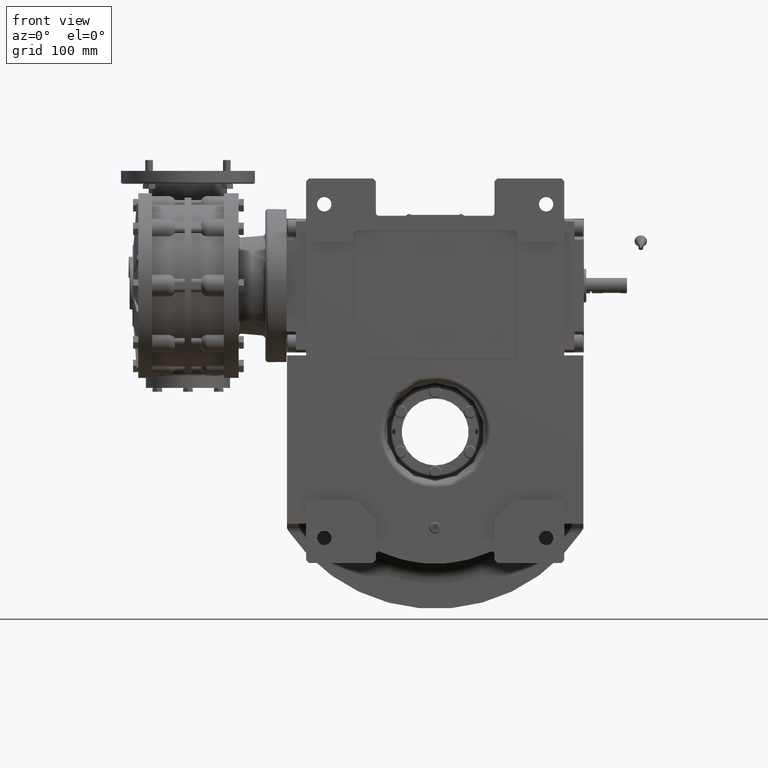
[diagram: clean part render]
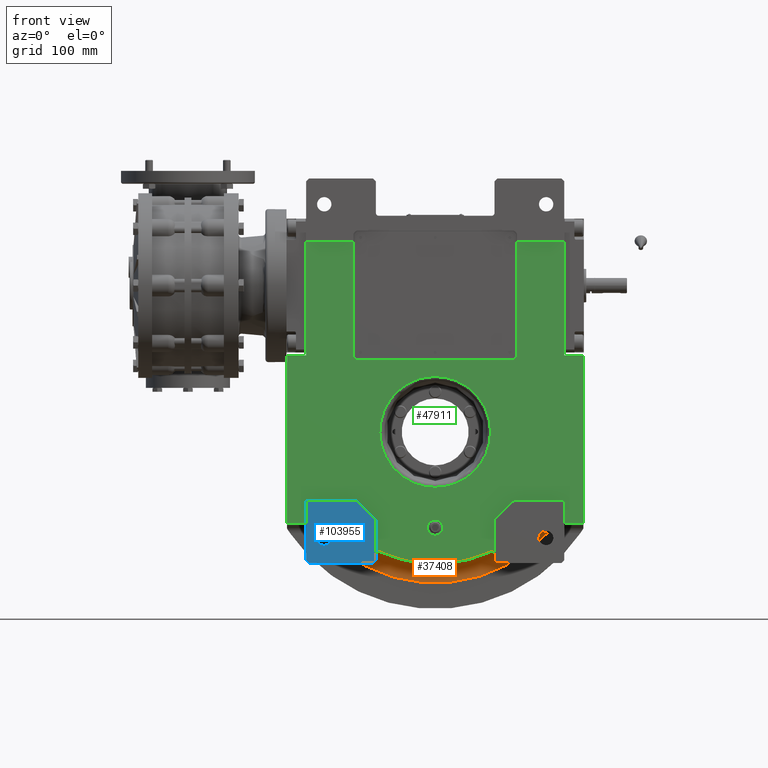
[diagram: same view with three faces highlighted in distinct colors, each labeled with its STEP entity id]
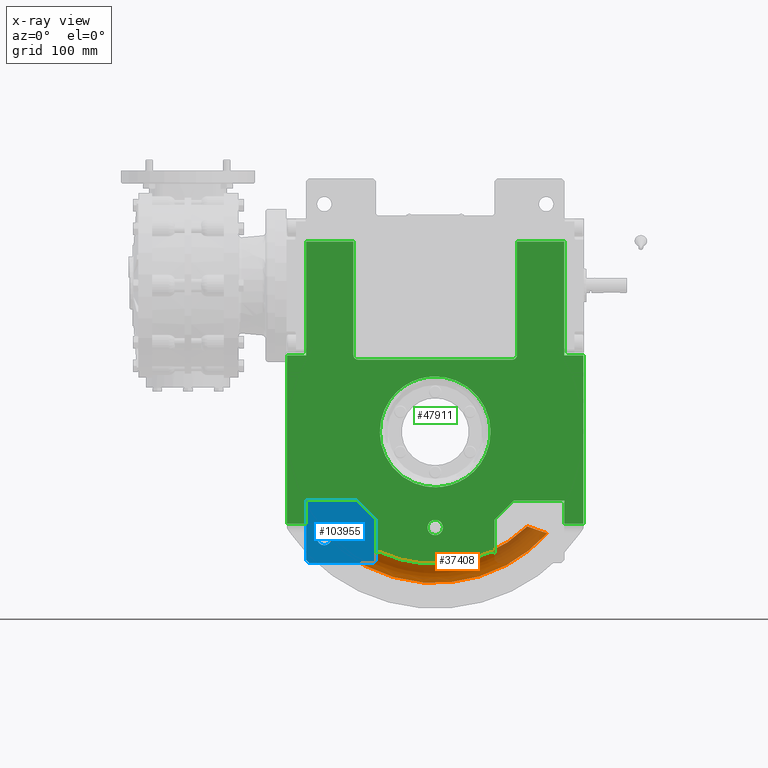
[diagram: x-ray of the same camera — body ghosted, the three highlighted faces saturated]
A machine part, front view with three faces highlighted in distinct colors.
The next image is the same camera in x-ray (body ghosted, the three faces saturated) — at least one of them is partly hidden behind the body in this view.
Their STEP definitions:

[orange] entity #37408 — the highlighted toroidal blend (fillet) surface has major radius 158 mm and minor (blend) radius 20 mm.
#369 = CARTESIAN_POINT ( 'NONE',  ( 97.74688043386996128, 32.31025036503177006, -99.36423024539772086 ) ) ;
#2761 = DIRECTION ( 'NONE',  ( -0.7986875995212583401, 0.000000000000000000, -0.6017458918604845497 ) ) ;
#3208 = CARTESIAN_POINT ( 'NONE',  ( 110.3220350555751281, 43.91652627139864506, -103.7565656085486836 ) ) ;
#3909 = CARTESIAN_POINT ( 'NONE',  ( -109.4570425004065584, 43.58796948114684966, -103.4653075323048057 ) ) ;
#4484 = CARTESIAN_POINT ( 'NONE',  ( -98.02791288108049628, 32.96098501412838999, -99.46561891031363700 ) ) ;
#5067 = CARTESIAN_POINT ( 'NONE',  ( -97.91255337353909738, 32.70133367099210631, -99.42366482389860494 ) ) ;
#5644 = CARTESIAN_POINT ( 'NONE',  ( -103.5604638868912701, 40.20595371232317206, -101.4407642183008420 ) ) ;
#6316 = CARTESIAN_POINT ( 'NONE',  ( 112.2734842588863842, 45.00000000000000000, -111.4014792453958052 ) ) ;
#7380 = CARTESIAN_POINT ( 'NONE',  ( 97.97117223922006701, 32.83484338586081464, -99.44526033932362452 ) ) ;
#8522 = CARTESIAN_POINT ( 'NONE',  ( 98.02735946511637621, 32.96029053751003346, -99.46562191245601525 ) ) ;
#11410 = CARTESIAN_POINT ( 'NONE',  ( 113.3373850614359384, 44.67107231412343538, -104.7552860952817042 ) ) ;
#11970 = CARTESIAN_POINT ( 'NONE',  ( 115.2789584378532908, 44.95770843063282030, -105.3909224794406327 ) ) ;
#12663 = CARTESIAN_POINT ( 'NONE',  ( -112.7507830709306091, 44.54855493280744128, -104.5636799672140143 ) ) ;
#13258 = CARTESIAN_POINT ( 'NONE',  ( -111.3923422199803639, 44.22351198310433773, -104.1132547796615171 ) ) ;
#13818 = CARTESIAN_POINT ( 'NONE',  ( -97.69402759877473841, 32.17824278475688260, -99.34394788754170236 ) ) ;
#14397 = CARTESIAN_POINT ( 'NONE',  ( -111.7301272109056498, 44.31438120929762192, -104.2256781774488275 ) ) ;
#14983 = CARTESIAN_POINT ( 'NONE',  ( -110.4507057160706438, 43.94872069333644049, -103.7991858523617452 ) ) ;
#16148 = CARTESIAN_POINT ( 'NONE',  ( 98.00384888286747298, 32.90804153405046151, -99.45709908681564571 ) ) ;
#16725 = CARTESIAN_POINT ( 'NONE',  ( 97.36157097504504065, 31.29695299417163667, -99.22571455668132501 ) ) ;
#17302 = CARTESIAN_POINT ( 'NONE',  ( 99.07132607232249200, 35.05063944442410673, -99.84668655224699307 ) ) ;
#17874 = CARTESIAN_POINT ( 'NONE',  ( 102.6950527371998163, 39.41357277141199233, -101.1352714509385038 ) ) ;
#18439 = CARTESIAN_POINT ( 'NONE',  ( 98.03505203622908937, 32.97731647600386395, -99.46841138892769152 ) ) ;
#18494 = B_SPLINE_CURVE_WITH_KNOTS ( 'NONE', 3,
 ( #79888, #61844, #97380, #23139, #50516, #39472, #58695, #13818, #59264, #5067, #31290, #41771, #66860, #4484, #68572, #77298, #33020, #30727, #112852, #102403, #22578, #94246, #49354, #111133, #57530, #84346, #32449, #58114, #93665, #40051, #5644, #104122, #110552, #111719, #93098, #84928, #101815, #24292, #40632, #59836, #66290, #68010, #3909, #76141, #94820, #21982, #31889, #14983, #13258, #14397, #23716, #74989, #12663, #67433, #86079, #49932, #85510, #102968, #48199, #48777, #41225, #75565, #76721, #83779 ),
 .UNSPECIFIED., .F., .F.,
 ( 4, 2, 2, 2, 1, 1, 1, 1, 2, 2, 2, 2, 2, 1, 1, 1, 1, 1, 2, 2, 2, 2, 2, 1, 1, 1, 1, 1, 1, 2, 2, 2, 2, 2, 1, 1, 1, 2, 2, 2, 4 ),
 ( 0.000000000000000000, 0.1250000000000111300, 0.1875000000000168754, 0.2187500000000195677, 0.2343750000000205391, 0.2421875000000207612, 0.2460937500000210110, 0.2480468750000210110, 0.2490234375000210942, 0.2500000000000211497, 0.3750000000000347500, 0.4375000000000414113, 0.4687500000000452416, 0.4843750000000466294, 0.4921875000000472955, 0.4960937500000481282, 0.4980468750000489053, 0.4990234375000496825, 0.4995117187500495715, 0.5000000000000494049, 0.6250000000001078027, 0.6875000000001370015, 0.7187500000001518785, 0.7343750000001594280, 0.7421875000001629807, 0.7460937500001643130, 0.7480468750001647571, 0.7490234375001647571, 0.7495117187501649791, 0.7497558593751655343, 0.7500000000001662004, 0.8125000000001361133, 0.8437500000001215694, 0.8593750000001149081, 0.8671875000001115774, 0.8710937500001101341, 0.8730468750001093570, 0.8740234375001090239, 0.8750000000001086908, 0.9375000000000544009, 1.000000000000000000 ),
 .UNSPECIFIED. ) ;
#19002 = CARTESIAN_POINT ( 'NONE',  ( 109.3745464157829872, 43.55663680806992488, -103.4372806364187625 ) ) ;
#19713 = EDGE_LOOP ( 'NONE', ( #36688, #106626, #84691, #96081 ) ) ;
#20151 = CARTESIAN_POINT ( 'NONE',  ( 112.6337903164633758, 44.53780329086850287, -104.5239396644698502 ) ) ;
#20954 = CARTESIAN_POINT ( 'NONE',  ( -112.2729284226672064, 45.00000000000000000, -111.4014722087630105 ) ) ;
#21530 = CARTESIAN_POINT ( 'NONE',  ( -101.7965497933509909, 45.00000000000000000, -121.4959109195396110 ) ) ;
#21558 = CARTESIAN_POINT ( 'NONE',  ( -1.421085471520200056E-14, 25.00000000000330047, 8.526512829121199706E-14 ) ) ;
#21982 = CARTESIAN_POINT ( 'NONE',  ( -109.4752336681219163, 43.59488064486146897, -103.4714376798484778 ) ) ;
#22578 = CARTESIAN_POINT ( 'NONE',  ( -101.7297215537501955, 38.46499574230020357, -100.7942339710923818 ) ) ;
#23005 = VERTEX_POINT ( 'NONE', #37717 ) ;
#23139 = CARTESIAN_POINT ( 'NONE',  ( -96.88299641673512497, 29.71310565171039997, -99.04611361363333799 ) ) ;
#23716 = CARTESIAN_POINT ( 'NONE',  ( -112.2734746109593260, 44.44468254698182363, -104.4058678920740988 ) ) ;
#24292 = CARTESIAN_POINT ( 'NONE',  ( -108.8488826586078488, 43.34740058216166858, -103.2598516227548657 ) ) ;
#25449 = CARTESIAN_POINT ( 'NONE',  ( 102.7499884497114238, 39.46404896067710411, -101.1546350695295473 ) ) ;
#26026 = CARTESIAN_POINT ( 'NONE',  ( 107.5527563214296549, 42.75924596825704072, -102.8205401285183029 ) ) ;
#26592 = CARTESIAN_POINT ( 'NONE',  ( 102.5048850568784786, 39.23635417113926138, -101.0681975133973225 ) ) ;
#27175 = CARTESIAN_POINT ( 'NONE',  ( 108.4800013347112042, 43.18941542812900281, -103.1351226245848949 ) ) ;
#28543 = CARTESIAN_POINT ( 'NONE',  ( 83.96432363714549751, 45.00000000000000000, -134.4519182908271944 ) ) ;
#28940 = VERTEX_POINT ( 'NONE', #81780 ) ;
#30727 = CARTESIAN_POINT ( 'NONE',  ( -100.3652794098986902, 36.87972709017024897, -100.3072398612967220 ) ) ;
#31290 = CARTESIAN_POINT ( 'NONE',  ( -97.97424618332217960, 32.84128268383337712, -99.44611099143347133 ) ) ;
#31414 = CARTESIAN_POINT ( 'NONE',  ( 117.1665481270144085, 45.00000000000000000, -106.0000000000000000 ) ) ;
#31889 = CARTESIAN_POINT ( 'NONE',  ( -109.9185748977876074, 43.76307598258188847, -103.6208235213127153 ) ) ;
#32449 = CARTESIAN_POINT ( 'NONE',  ( -102.7293842753246480, 39.44505987403460523, -101.1479936078508217 ) ) ;
#32705 = VERTEX_POINT ( 'NONE', #70696 ) ;
#33020 = CARTESIAN_POINT ( 'NONE',  ( -99.18958940278133696, 35.23783606590234285, -99.88545211301371296 ) ) ;
#34760 = CARTESIAN_POINT ( 'NONE',  ( 104.2463131879213307, 40.76393802617366191, -101.6826970027681085 ) ) ;
#35342 = CARTESIAN_POINT ( 'NONE',  ( 102.1879067513015258, 38.93036966924995568, -100.9561944668075455 ) ) ;
#35497 = TOROIDAL_SURFACE ( 'NONE', #57888, 158.0000000000000000, 20.00000000000000000 ) ;
#35910 = CARTESIAN_POINT ( 'NONE',  ( 98.48471084682699939, 33.97079976953421721, -99.63148764706355109 ) ) ;
#36688 = ORIENTED_EDGE ( 'NONE', *, *, #96537, .F. ) ;
#37408 = ADVANCED_FACE ( 'NONE', ( #98961 ), #35497, .F. ) ;
#37717 = CARTESIAN_POINT ( 'NONE',  ( -117.1660380023439956, 45.00001431931600138, -105.9999239592122109 ) ) ;
#38456 = DIRECTION ( 'NONE',  ( -6.789570679155330615E-15, -1.000000000000000000, 2.340198913247644897E-14 ) ) ;
#39472 = CARTESIAN_POINT ( 'NONE',  ( -97.38739292718010176, 31.36510134331906130, -99.23164404730367494 ) ) ;
#40051 = CARTESIAN_POINT ( 'NONE',  ( -102.7556243044858064, 39.46912785005818591, -101.1572386221299240 ) ) ;
#40632 = CARTESIAN_POINT ( 'NONE',  ( -109.1605355308136609, 43.47300632657120900, -103.3652613385540207 ) ) ;
#41225 = CARTESIAN_POINT ( 'NONE',  ( -114.9267522836661755, 44.89477428892062960, -105.2774722197928270 ) ) ;
#41771 = CARTESIAN_POINT ( 'NONE',  ( -98.00546406152352574, 32.91113758827333413, -99.45746077517848960 ) ) ;
#43522 = CARTESIAN_POINT ( 'NONE',  ( 97.90664548853494864, 32.68827471051651656, -99.42190602882016037 ) ) ;
#44090 = CARTESIAN_POINT ( 'NONE',  ( 100.2350872385880791, 36.71107100005902879, -100.2633408774202195 ) ) ;
#44131 = VERTEX_POINT ( 'NONE', #93371 ) ;
#44493 = AXIS2_PLACEMENT_3D ( 'NONE', #21558, #38456, #55378 ) ;
#46717 = EDGE_CURVE ( 'NONE', #23005, #32705, #106925, .T. ) ;
#48199 = CARTESIAN_POINT ( 'NONE',  ( -113.2388050366955667, 44.64354608652779177, -104.7244472051020097 ) ) ;
#48777 = CARTESIAN_POINT ( 'NONE',  ( -114.1474023438828596, 44.80939919492819001, -105.0231329103317108 ) ) ;
#49354 = CARTESIAN_POINT ( 'NONE',  ( -102.2964152114121248, 39.03719391014137585, -100.9951587366911241 ) ) ;
#49932 = CARTESIAN_POINT ( 'NONE',  ( -113.1631049617858622, 44.62956057005464316, -104.6995521603640498 ) ) ;
#50516 = CARTESIAN_POINT ( 'NONE',  ( -97.06297459206342637, 30.37875981429069938, -99.11244784926033446 ) ) ;
#51672 = CARTESIAN_POINT ( 'NONE',  ( 98.03207687276184856, 32.97073713156943597, -99.46733246904339865 ) ) ;
#53407 = CARTESIAN_POINT ( 'NONE',  ( 97.85275650508563672, 32.56236914450305875, -99.40243881657917768 ) ) ;
#55378 = DIRECTION ( 'NONE',  ( -0.6978784504689377055, -1.201735973212917754E-14, -0.7162162162162165613 ) ) ;
#56499 = CARTESIAN_POINT ( 'NONE',  ( -83.96482471285699489, 45.00000000000000000, -134.4515343287771998 ) ) ;
#57530 = CARTESIAN_POINT ( 'NONE',  ( -102.6416497146342408, 39.36405972610243964, -101.1170677917055087 ) ) ;
#57888 = AXIS2_PLACEMENT_3D ( 'NONE', #62841, #90228, #2761 ) ;
#58114 = CARTESIAN_POINT ( 'NONE',  ( -102.7419653505997275, 39.45660694743568797, -101.1524264426147681 ) ) ;
#58695 = CARTESIAN_POINT ( 'NONE',  ( -97.50460443159397528, 31.69185725558088507, -99.27465210942251872 ) ) ;
#59264 = CARTESIAN_POINT ( 'NONE',  ( -97.79214034478044937, 32.42049839196046435, -99.37979107747185026 ) ) ;
#59836 = CARTESIAN_POINT ( 'NONE',  ( -109.3181507463841768, 43.53466286722584755, -103.4184730461046655 ) ) ;
#60422 = CARTESIAN_POINT ( 'NONE',  ( 97.48234618482011626, 31.63550269026396577, -99.26904948111314297 ) ) ;
#61591 = CARTESIAN_POINT ( 'NONE',  ( 103.3977546460237562, 40.05675034197459183, -101.3829155952155929 ) ) ;
#61844 = CARTESIAN_POINT ( 'NONE',  ( -96.30868053554550556, 26.34585515008642886, -98.83642070424104986 ) ) ;
#62731 = CARTESIAN_POINT ( 'NONE',  ( 108.7699844828208597, 43.31492083898538681, -103.2332460237712013 ) ) ;
#62733 = EDGE_CURVE ( 'NONE', #28940, #23005, #18494, .T. ) ;
#62841 = CARTESIAN_POINT ( 'NONE',  ( -2.057655180072804513E-28, 25.00000000000000000, 0.000000000000000000 ) ) ;
#64094 = CARTESIAN_POINT ( 'NONE',  ( 101.7963591369399978, 45.00000000000000000, -121.4958819722340024 ) ) ;
#66290 = CARTESIAN_POINT ( 'NONE',  ( -109.3974056362629312, 43.56519796802493971, -103.4452044021865618 ) ) ;
#66403 = CARTESIAN_POINT ( 'NONE',  ( -64.41635450183450473, 45.00000000000000000, -144.8381713325094324 ) ) ;
#66860 = CARTESIAN_POINT ( 'NONE',  ( -98.01892274206869615, 32.94104951340082010, -99.46235204995994650 ) ) ;
#67433 = CARTESIAN_POINT ( 'NONE',  ( -112.8981352970310326, 44.57872936801063446, -104.6123043516303426 ) ) ;
#68010 = CARTESIAN_POINT ( 'NONE',  ( -109.4371449076648020, 43.58039139906387760, -103.4586012990809252 ) ) ;
#68572 = CARTESIAN_POINT ( 'NONE',  ( -98.03293628953102257, 32.97209666675917106, -99.46744407336238680 ) ) ;
#69732 = CARTESIAN_POINT ( 'NONE',  ( 96.84980827649697233, 29.60359732435895452, -99.04162677069164999 ) ) ;
#70303 = CARTESIAN_POINT ( 'NONE',  ( 105.9055068370100230, 41.85610961708399458, -102.2571069029231410 ) ) ;
#70696 = CARTESIAN_POINT ( 'NONE',  ( 117.1665481270144085, 45.00000000000000000, -106.0000000000000000 ) ) ;
#71448 = CARTESIAN_POINT ( 'NONE',  ( 102.7431065449346335, 39.45774344501223396, -101.1522096567761935 ) ) ;
#72815 = CARTESIAN_POINT ( 'NONE',  ( -4.611055492802900184E-05, 45.00000000000000000, -158.5100177325210211 ) ) ;
#73157 = CARTESIAN_POINT ( 'NONE',  ( 117.1665481270144085, 45.00000000000000000, -106.0000000000000000 ) ) ;
#74989 = CARTESIAN_POINT ( 'NONE',  ( -112.4607002535011873, 44.48710846717178669, -104.4678539401486432 ) ) ;
#75565 = CARTESIAN_POINT ( 'NONE',  ( -116.2352257174750463, 44.99001509439585789, -105.7012472922178006 ) ) ;
#76141 = CARTESIAN_POINT ( 'NONE',  ( -109.4655760309758534, 43.59121322662022635, -103.4681832982696505 ) ) ;
#76721 = CARTESIAN_POINT ( 'NONE',  ( -116.7646410946360049, 44.99998530194281443, -105.8709790865936355 ) ) ;
#77298 = CARTESIAN_POINT ( 'NONE',  ( -98.54806655395772452, 34.10925224219861462, -99.65458556124448819 ) ) ;
#78484 = CARTESIAN_POINT ( 'NONE',  ( 102.3983983773695172, 39.13454416598305130, -101.0305906898127120 ) ) ;
#79049 = CARTESIAN_POINT ( 'NONE',  ( 98.02029075397882707, 32.94461909195858595, -99.46305897812415253 ) ) ;
#79620 = CARTESIAN_POINT ( 'NONE',  ( 100.6690459606547705, 37.27067431726949565, -100.4179235864729520 ) ) ;
#79888 = CARTESIAN_POINT ( 'NONE',  ( -96.30722393658518854, 24.99999992571344976, -98.83796549704690904 ) ) ;
#80212 = CARTESIAN_POINT ( 'NONE',  ( 96.30723760260589472, 24.99999990761120117, -98.83797943607669367 ) ) ;
#80772 = CARTESIAN_POINT ( 'NONE',  ( 97.67883289305895289, 32.14176207053703394, -99.33972559280917380 ) ) ;
#81568 = CARTESIAN_POINT ( 'NONE',  ( -21.98885812455705135, 45.00000000000000000, -156.9786534940434990 ) ) ;
#81780 = CARTESIAN_POINT ( 'NONE',  ( -96.30722393658518854, 24.99999992571344976, -98.83796549704690904 ) ) ;
#82722 = CARTESIAN_POINT ( 'NONE',  ( -117.1660380023439956, 45.00001431931600138, -105.9999239592122109 ) ) ;
#83779 = CARTESIAN_POINT ( 'NONE',  ( -117.1660380023439956, 45.00001431931600138, -105.9999239592122109 ) ) ;
#83896 = CARTESIAN_POINT ( 'NONE',  ( 43.59869364544065462, 45.00000000000000000, -152.4011103777230005 ) ) ;
#84346 = CARTESIAN_POINT ( 'NONE',  ( -102.7000760039274923, 39.41809226182505910, -101.1376651757015992 ) ) ;
#84691 = ORIENTED_EDGE ( 'NONE', *, *, #46717, .T. ) ;
#84928 = CARTESIAN_POINT ( 'NONE',  ( -108.0740276487307767, 43.00863225675112034, -102.9965373334888028 ) ) ;
#85510 = CARTESIAN_POINT ( 'NONE',  ( -113.2014659484088526, 44.63667040653874096, -104.7121690570024697 ) ) ;
#86079 = CARTESIAN_POINT ( 'NONE',  ( -113.0741043758506521, 44.61281630514807972, -104.6702653786944808 ) ) ;
#87248 = CARTESIAN_POINT ( 'NONE',  ( 101.3949774993228203, 38.10441288670152460, -100.6755621131664640 ) ) ;
#87681 = B_SPLINE_CURVE_WITH_KNOTS ( 'NONE', 3,
 ( #80212, #95978, #104724, #69732, #97691, #16725, #60422, #80772, #369, #53407, #43522, #7380, #16148, #79049, #8522, #51672, #18439, #35910, #17302, #44090, #79620, #87248, #105301, #115161, #35342, #78484, #26592, #106444, #17874, #88970, #71448, #25449, #96551, #114594, #61591, #34760, #70303, #105871, #26026, #107015, #27175, #62731, #98256, #91265, #19002, #101134, #3208, #99983, #20151, #11410, #11970, #108726, #73157 ),
 .UNSPECIFIED., .F., .F.,
 ( 4, 2, 2, 2, 2, 1, 1, 1, 1, 2, 2, 2, 2, 2, 2, 1, 1, 1, 1, 1, 2, 2, 2, 2, 2, 1, 1, 2, 2, 2, 2, 4 ),
 ( 0.000000000000000000, 0.1249999999998392397, 0.1874999999997588596, 0.2187499999997192801, 0.2343749999996997124, 0.2421874999996898037, 0.2460937499996850297, 0.2480468749996828648, 0.2490234374996819489, 0.2495117187496817546, 0.2499999999996815325, 0.3749999999995941025, 0.4374999999995501376, 0.4687499999995277111, 0.4843749999995164979, 0.4921874999995102251, 0.4960937499995068944, 0.4980468749995055622, 0.4990234374995043964, 0.4995117187495035638, 0.4997558593745026756, 0.4999999999995017319, 0.6249999999996301847, 0.6874999999996945776, 0.7187499999997267741, 0.7343749999997423172, 0.7421874999997500888, 0.7460937499997538636, 0.7499999999997576383, 0.8124999999998182565, 0.8749999999998788747, 1.000000000000000000 ),
 .UNSPECIFIED. ) ;
#88970 = CARTESIAN_POINT ( 'NONE',  ( 102.7270658436678303, 39.44302597977765146, -101.1465560309166420 ) ) ;
#90228 = DIRECTION ( 'NONE',  ( 0.000000000000000000, -1.000000000000000000, 0.000000000000000000 ) ) ;
#91265 = CARTESIAN_POINT ( 'NONE',  ( 109.2723530990759429, 43.51694133331180581, -103.4028213162863494 ) ) ;
#92626 = CARTESIAN_POINT ( 'NONE',  ( 21.98865651185845138, 45.00000000000000000, -156.9786712556644943 ) ) ;
#93098 = CARTESIAN_POINT ( 'NONE',  ( -107.7423295384170245, 42.85102449398583957, -102.8832939820001116 ) ) ;
#93371 = CARTESIAN_POINT ( 'NONE',  ( 96.30723760260589472, 24.99999990761120117, -98.83797943607669367 ) ) ;
#93665 = CARTESIAN_POINT ( 'NONE',  ( -102.7503572650319370, 39.46430266327028846, -101.1553830789643200 ) ) ;
#94246 = CARTESIAN_POINT ( 'NONE',  ( -102.1052124814145685, 38.84748452432424415, -100.9274324292788094 ) ) ;
#94820 = CARTESIAN_POINT ( 'NONE',  ( -109.4712663826515495, 43.59337483259150048, -103.4701008455638771 ) ) ;
#95978 = CARTESIAN_POINT ( 'NONE',  ( 96.30961973117844366, 26.25722250582394679, -98.83759602172548853 ) ) ;
#96081 = ORIENTED_EDGE ( 'NONE', *, *, #113574, .F. ) ;
#96537 = EDGE_CURVE ( 'NONE', #28940, #44131, #111455, .T. ) ;
#96551 = CARTESIAN_POINT ( 'NONE',  ( 102.7545780126843340, 39.46825219890278191, -101.1562525515439432 ) ) ;
#97380 = CARTESIAN_POINT ( 'NONE',  ( -96.45153004134235175, 27.70310141048831198, -98.88764133614009211 ) ) ;
#97691 = CARTESIAN_POINT ( 'NONE',  ( 97.02992846564075080, 30.28103333706581068, -99.10657987401545199 ) ) ;
#98256 = CARTESIAN_POINT ( 'NONE',  ( 109.1198961715385565, 43.45704474481149759, -103.3513959743997361 ) ) ;
#98961 = FACE_OUTER_BOUND ( 'NONE', #19713, .T. ) ;
#99983 = CARTESIAN_POINT ( 'NONE',  ( 111.1261820987919577, 44.16061954937864442, -104.0245863794300476 ) ) ;
#101134 = CARTESIAN_POINT ( 'NONE',  ( 109.4247943805015808, 43.57593919126923510, -103.4542186149024303 ) ) ;
#101815 = CARTESIAN_POINT ( 'NONE',  ( -108.5878809751568355, 43.23598813457415702, -103.1712700995225731 ) ) ;
#102403 = CARTESIAN_POINT ( 'NONE',  ( -101.4886153696198647, 38.20591153641694859, -100.7084430121944365 ) ) ;
#102968 = CARTESIAN_POINT ( 'NONE',  ( -113.2270883732561799, 44.64139532762662554, -104.7205948346391580 ) ) ;
#104122 = CARTESIAN_POINT ( 'NONE',  ( -104.5087876018555448, 40.95577502017587790, -101.7701399989986726 ) ) ;
#104724 = CARTESIAN_POINT ( 'NONE',  ( 96.42904774952934588, 27.58533141082950735, -98.88715296331103843 ) ) ;
#105301 = CARTESIAN_POINT ( 'NONE',  ( 101.6495231024777866, 38.38138673485482855, -100.7657376625949581 ) ) ;
#105871 = CARTESIAN_POINT ( 'NONE',  ( 106.5230779561971985, 42.22457348863358106, -102.4693920495566175 ) ) ;
#106444 = CARTESIAN_POINT ( 'NONE',  ( 102.6312996237867168, 39.35459407148432831, -101.1127928936633111 ) ) ;
#106626 = ORIENTED_EDGE ( 'NONE', *, *, #62733, .T. ) ;
#106925 = B_SPLINE_CURVE_WITH_KNOTS ( 'NONE', 3,
 ( #82722, #20954, #21530, #56499, #66403, #110106, #81568, #72815, #92626, #83896, #108395, #28543, #64094, #6316, #31414 ),
 .UNSPECIFIED., .F., .F.,
 ( 4, 1, 1, 1, 1, 1, 1, 1, 1, 1, 1, 1, 4 ),
 ( 0.000000000000000000, 0.08230548578115680358, 0.1657096187028465062, 0.2495666647837894991, 0.3333347921405555025, 0.4167731287220570180, 0.4999985279742490407, 0.5832235921521119471, 0.6666606947103590475, 0.7504274457011980148, 0.8342845243559869894, 0.9176906032219021014, 1.000000000000000000 ),
 .UNSPECIFIED. ) ;
#107015 = CARTESIAN_POINT ( 'NONE',  ( 107.9131611571321798, 42.93445073039974602, -102.9430406042122996 ) ) ;
#108395 = CARTESIAN_POINT ( 'NONE',  ( 64.41571053208309650, 45.00000000000000000, -144.8384350625149750 ) ) ;
#108726 = CARTESIAN_POINT ( 'NONE',  ( 116.3458202215898751, 45.00009952038519856, -105.7365312948304279 ) ) ;
#110106 = CARTESIAN_POINT ( 'NONE',  ( -43.59914018231270205, 45.00000000000000000, -152.4009961974019802 ) ) ;
#110552 = CARTESIAN_POINT ( 'NONE',  ( -106.1807118417980007, 42.01955951595629557, -102.3474989434262028 ) ) ;
#111133 = CARTESIAN_POINT ( 'NONE',  ( -102.5255579008334479, 39.25560902335374891, -101.0761116096675352 ) ) ;
#111455 = CIRCLE ( 'NONE', #44493, 138.0000000000000853 ) ;
#111719 = CARTESIAN_POINT ( 'NONE',  ( -106.7795100371588859, 42.36370184623466884, -102.5536834389168064 ) ) ;
#112852 = CARTESIAN_POINT ( 'NONE',  ( -100.7926875676756566, 37.41839457156896742, -100.4603088552798908 ) ) ;
#113574 = EDGE_CURVE ( 'NONE', #44131, #32705, #87681, .T. ) ;
#114594 = CARTESIAN_POINT ( 'NONE',  ( 102.7579227797914854, 39.47131357591320011, -101.1574313033593882 ) ) ;
#115161 = CARTESIAN_POINT ( 'NONE',  ( 102.0508725851416756, 38.79353669661188064, -100.9077352945622579 ) ) ;

[blue] entity #103955 — the highlighted planar face has unit normal (0, -1, 0).
#203 = LINE ( 'NONE', #35759, #58669 ) ;
#2040 = ORIENTED_EDGE ( 'NONE', *, *, #59213, .T. ) ;
#2633 = CARTESIAN_POINT ( 'NONE',  ( -62.00000000000000000, -80.00000000000000000, -134.0000000000000000 ) ) ;
#3899 = EDGE_CURVE ( 'NONE', #65642, #95688, #78479, .T. ) ;
#4976 = EDGE_LOOP ( 'NONE', ( #51450, #55337 ) ) ;
#5273 = CARTESIAN_POINT ( 'NONE',  ( 0.000000000000000000, -80.00000000000000000, 0.000000000000000000 ) ) ;
#5538 = LINE ( 'NONE', #66181, #79546 ) ;
#11701 = AXIS2_PLACEMENT_3D ( 'NONE', #79338, #78198, #113745 ) ;
#12193 = LINE ( 'NONE', #22101, #76741 ) ;
#12691 = CARTESIAN_POINT ( 'NONE',  ( -123.5000000000000000, -80.00000000000000000, -111.0000000000000000 ) ) ;
#12889 = DIRECTION ( 'NONE',  ( 0.000000000000000000, -1.000000000000000000, 0.000000000000000000 ) ) ;
#13436 = VERTEX_POINT ( 'NONE', #97554 ) ;
#13557 = EDGE_LOOP ( 'NONE', ( #106724, #75614, #66516, #2040, #50977, #72018, #57726 ) ) ;
#16114 = EDGE_CURVE ( 'NONE', #67473, #65642, #40716, .T. ) ;
#19179 = CIRCLE ( 'NONE', #67531, 7.499999999999992895 ) ;
#22101 = CARTESIAN_POINT ( 'NONE',  ( -135.0000000000000000, -80.00000000000000000, -72.00000000000000000 ) ) ;
#24209 = VECTOR ( 'NONE', #31961, 1000.000000000000114 ) ;
#24837 = VERTEX_POINT ( 'NONE', #104394 ) ;
#26747 = EDGE_CURVE ( 'NONE', #13436, #81851, #203, .T. ) ;
#29547 = CARTESIAN_POINT ( 'NONE',  ( -116.0000000000000000, -80.00000000000000000, -111.0000000000000000 ) ) ;
#31961 = DIRECTION ( 'NONE',  ( 0.7071067811865474617, 0.000000000000000000, 0.7071067811865474617 ) ) ;
#35759 = CARTESIAN_POINT ( 'NONE',  ( -135.0000000000000000, -80.00000000000000000, -134.0000000000000000 ) ) ;
#36824 = CARTESIAN_POINT ( 'NONE',  ( -82.00000000000000000, -80.00000000000000000, -72.00000000000000000 ) ) ;
#37974 = AXIS2_PLACEMENT_3D ( 'NONE', #5273, #12889, #58905 ) ;
#40716 = LINE ( 'NONE', #59344, #24209 ) ;
#43517 = CARTESIAN_POINT ( 'NONE',  ( -62.00000000000000000, -80.00000000000000000, -134.0000000000000000 ) ) ;
#48162 = DIRECTION ( 'NONE',  ( 1.000000000000000000, 0.000000000000000000, 0.000000000000000000 ) ) ;
#48875 = CARTESIAN_POINT ( 'NONE',  ( -132.0000000000000000, -80.00000000000000000, -137.0000000000000000 ) ) ;
#49196 = VECTOR ( 'NONE', #63647, 1000.000000000000000 ) ;
#49956 = VERTEX_POINT ( 'NONE', #12691 ) ;
#50977 = ORIENTED_EDGE ( 'NONE', *, *, #104824, .T. ) ;
#51450 = ORIENTED_EDGE ( 'NONE', *, *, #53580, .T. ) ;
#53580 = EDGE_CURVE ( 'NONE', #63648, #49956, #19179, .T. ) ;
#53704 = CARTESIAN_POINT ( 'NONE',  ( -65.00000000000000000, -80.00000000000000000, -137.0000000000000000 ) ) ;
#55337 = ORIENTED_EDGE ( 'NONE', *, *, #80374, .T. ) ;
#56486 = DIRECTION ( 'NONE',  ( 1.000000000000000000, 0.000000000000000000, 0.000000000000000000 ) ) ;
#57726 = ORIENTED_EDGE ( 'NONE', *, *, #26747, .T. ) ;
#58669 = VECTOR ( 'NONE', #80617, 1000.000000000000114 ) ;
#58728 = CARTESIAN_POINT ( 'NONE',  ( -132.0000000000000000, -80.00000000000000000, -137.0000000000000000 ) ) ;
#58905 = DIRECTION ( 'NONE',  ( -1.000000000000000000, 0.000000000000000000, 0.000000000000000000 ) ) ;
#59213 = EDGE_CURVE ( 'NONE', #95688, #24837, #5538, .T. ) ;
#59344 = CARTESIAN_POINT ( 'NONE',  ( -65.00000000000000000, -80.00000000000000000, -137.0000000000000000 ) ) ;
#63069 = LINE ( 'NONE', #36824, #49196 ) ;
#63647 = DIRECTION ( 'NONE',  ( -1.000000000000000000, 0.000000000000000000, 0.000000000000000000 ) ) ;
#63648 = VERTEX_POINT ( 'NONE', #91644 ) ;
#65109 = DIRECTION ( 'NONE',  ( 0.000000000000000000, 1.000000000000000000, 0.000000000000000000 ) ) ;
#65240 = LINE ( 'NONE', #48875, #110770 ) ;
#65642 = VERTEX_POINT ( 'NONE', #2633 ) ;
#66181 = CARTESIAN_POINT ( 'NONE',  ( -62.00000000000000000, -80.00000000000000000, -92.00000000000000000 ) ) ;
#66516 = ORIENTED_EDGE ( 'NONE', *, *, #3899, .T. ) ;
#67473 = VERTEX_POINT ( 'NONE', #53704 ) ;
#67531 = AXIS2_PLACEMENT_3D ( 'NONE', #29547, #65109, #48162 ) ;
#67646 = PLANE ( 'NONE',  #37974 ) ;
#72018 = ORIENTED_EDGE ( 'NONE', *, *, #89492, .T. ) ;
#75614 = ORIENTED_EDGE ( 'NONE', *, *, #16114, .T. ) ;
#76258 = DIRECTION ( 'NONE',  ( 0.000000000000000000, 0.000000000000000000, -1.000000000000000000 ) ) ;
#76741 = VECTOR ( 'NONE', #76258, 1000.000000000000000 ) ;
#77651 = CARTESIAN_POINT ( 'NONE',  ( -135.0000000000000000, -80.00000000000000000, -72.00000000000000000 ) ) ;
#78198 = DIRECTION ( 'NONE',  ( 0.000000000000000000, 1.000000000000000000, 0.000000000000000000 ) ) ;
#78479 = LINE ( 'NONE', #43517, #91464 ) ;
#79338 = CARTESIAN_POINT ( 'NONE',  ( -116.0000000000000000, -80.00000000000000000, -111.0000000000000000 ) ) ;
#79546 = VECTOR ( 'NONE', #112751, 1000.000000000000114 ) ;
#80374 = EDGE_CURVE ( 'NONE', #49956, #63648, #106618, .T. ) ;
#80617 = DIRECTION ( 'NONE',  ( 0.7071067811865474617, 0.000000000000000000, -0.7071067811865474617 ) ) ;
#81851 = VERTEX_POINT ( 'NONE', #58728 ) ;
#83969 = VERTEX_POINT ( 'NONE', #77651 ) ;
#89492 = EDGE_CURVE ( 'NONE', #83969, #13436, #12193, .T. ) ;
#91464 = VECTOR ( 'NONE', #106439, 1000.000000000000000 ) ;
#91644 = CARTESIAN_POINT ( 'NONE',  ( -108.5000000000000000, -80.00000000000000000, -111.0000000000000000 ) ) ;
#95688 = VERTEX_POINT ( 'NONE', #106533 ) ;
#97554 = CARTESIAN_POINT ( 'NONE',  ( -135.0000000000000000, -80.00000000000000000, -134.0000000000000000 ) ) ;
#101464 = FACE_BOUND ( 'NONE', #4976, .T. ) ;
#102618 = FACE_OUTER_BOUND ( 'NONE', #13557, .T. ) ;
#103955 = ADVANCED_FACE ( 'NONE', ( #101464, #102618 ), #67646, .T. ) ;
#104394 = CARTESIAN_POINT ( 'NONE',  ( -82.00000000000000000, -80.00000000000000000, -72.00000000000000000 ) ) ;
#104824 = EDGE_CURVE ( 'NONE', #24837, #83969, #63069, .T. ) ;
#105619 = EDGE_CURVE ( 'NONE', #81851, #67473, #65240, .T. ) ;
#106439 = DIRECTION ( 'NONE',  ( 0.000000000000000000, 0.000000000000000000, 1.000000000000000000 ) ) ;
#106533 = CARTESIAN_POINT ( 'NONE',  ( -62.00000000000000000, -80.00000000000000000, -92.00000000000000000 ) ) ;
#106618 = CIRCLE ( 'NONE', #11701, 7.499999999999992895 ) ;
#106724 = ORIENTED_EDGE ( 'NONE', *, *, #105619, .T. ) ;
#110770 = VECTOR ( 'NONE', #56486, 1000.000000000000000 ) ;
#112751 = DIRECTION ( 'NONE',  ( -0.7071067811865474617, 0.000000000000000000, 0.7071067811865474617 ) ) ;
#113745 = DIRECTION ( 'NONE',  ( -1.000000000000000000, 0.000000000000000000, 0.000000000000000000 ) ) ;

[green] entity #47911 — the highlighted planar face has unit normal (0, 1, 0).
#929 = VERTEX_POINT ( 'NONE', #15611 ) ;
#1863 = AXIS2_PLACEMENT_3D ( 'NONE', #46594, #56481, #75076 ) ;
#2392 = EDGE_CURVE ( 'NONE', #47234, #37531, #29731, .T. ) ;
#2460 =( BOUNDED_CURVE ( )  B_SPLINE_CURVE ( 3, ( #80534, #53730, #8856, #99744 ),
 .UNSPECIFIED., .F., .F. ) 
 B_SPLINE_CURVE_WITH_KNOTS ( ( 4, 4 ),
 ( 1.417576403733056045, 4.559165537837738036 ),
 .UNSPECIFIED. ) 
 CURVE ( )  GEOMETRIC_REPRESENTATION_ITEM ( )  RATIONAL_B_SPLINE_CURVE ( ( 1.000000000000000000, 0.3333345064950371528, 0.3333345064950371528, 1.000000000000000000 ) ) 
 REPRESENTATION_ITEM ( '' )  );
#2655 = VERTEX_POINT ( 'NONE', #23715 ) ;
#2835 = EDGE_CURVE ( 'NONE', #83248, #78327, #71990, .T. ) ;
#2914 = DIRECTION ( 'NONE',  ( 0.000000000000000000, 0.000000000000000000, 1.000000000000000000 ) ) ;
#3381 = CARTESIAN_POINT ( 'NONE',  ( 59.00000000000000000, -73.00000000000000000, -128.0624847486569990 ) ) ;
#3525 = EDGE_CURVE ( 'NONE', #16511, #40671, #59770, .T. ) ;
#3726 = CARTESIAN_POINT ( 'NONE',  ( -135.0000000000000000, -73.00000000000000000, -72.00000000000000000 ) ) ;
#4210 = VERTEX_POINT ( 'NONE', #36340 ) ;
#4678 = DIRECTION ( 'NONE',  ( 1.000000000000000000, 0.000000000000000000, 0.000000000000000000 ) ) ;
#4841 = CARTESIAN_POINT ( 'NONE',  ( 135.0000000000000000, -73.00000000000000000, -96.00000000000000000 ) ) ;
#5231 = CARTESIAN_POINT ( 'NONE',  ( -1.115322681495329805E-12, -73.00000000000000000, 57.88848986029439914 ) ) ;
#5755 = CARTESIAN_POINT ( 'NONE',  ( -59.00000000000000000, -73.00000000000000000, -128.0624847486569990 ) ) ;
#6488 = CARTESIAN_POINT ( 'NONE',  ( -135.0000000000000000, -73.00000000000000000, 80.00000000000000000 ) ) ;
#6525 = CIRCLE ( 'NONE', #43817, 8.000000000000000000 ) ;
#7344 = VERTEX_POINT ( 'NONE', #36918 ) ;
#8564 = ORIENTED_EDGE ( 'NONE', *, *, #2835, .F. ) ;
#8856 = CARTESIAN_POINT ( 'NONE',  ( -115.7767661625582463, -73.00000000000000000, 57.88834748044401834 ) ) ;
#10238 = CARTESIAN_POINT ( 'NONE',  ( 155.0000000000000000, -73.00000000000000000, -96.00000000000000000 ) ) ;
#10940 = CARTESIAN_POINT ( 'NONE',  ( -80.50000000000000000, -73.00000000000000000, 75.50000000000000000 ) ) ;
#11468 = VERTEX_POINT ( 'NONE', #29013 ) ;
#12846 = CARTESIAN_POINT ( 'NONE',  ( 115.7767661625584452, -73.00000000000000000, -57.88834748044417466 ) ) ;
#12971 = DIRECTION ( 'NONE',  ( -0.7071067811865474617, 0.000000000000000000, 0.7071067811865474617 ) ) ;
#13429 = CARTESIAN_POINT ( 'NONE',  ( 1.116299612869330063E-12, -73.00000000000000000, -57.88848986029439914 ) ) ;
#13515 = DIRECTION ( 'NONE',  ( 1.000000000000000000, 0.000000000000000000, 0.000000000000000000 ) ) ;
#13637 = ORIENTED_EDGE ( 'NONE', *, *, #3525, .F. ) ;
#14878 = LINE ( 'NONE', #68476, #38419 ) ;
#15243 = ORIENTED_EDGE ( 'NONE', *, *, #50766, .F. ) ;
#15611 = CARTESIAN_POINT ( 'NONE',  ( 135.0000000000000000, -73.00000000000000000, 199.0000000000000000 ) ) ;
#16143 = AXIS2_PLACEMENT_3D ( 'NONE', #3381, #57023, #101312 ) ;
#16511 = VERTEX_POINT ( 'NONE', #66231 ) ;
#16618 = VERTEX_POINT ( 'NONE', #51012 ) ;
#16739 = ORIENTED_EDGE ( 'NONE', *, *, #80204, .F. ) ;
#17674 = CARTESIAN_POINT ( 'NONE',  ( -85.50000000000000000, -73.00000000000000000, 80.50000000000000000 ) ) ;
#17817 = ORIENTED_EDGE ( 'NONE', *, *, #60622, .F. ) ;
#17974 = FACE_BOUND ( 'NONE', #22942, .T. ) ;
#18911 = ORIENTED_EDGE ( 'NONE', *, *, #96227, .F. ) ;
#20232 = VECTOR ( 'NONE', #30691, 1000.000000000000000 ) ;
#20781 = EDGE_LOOP ( 'NONE', ( #13637, #64654 ) ) ;
#20997 = EDGE_CURVE ( 'NONE', #64769, #83248, #75928, .T. ) ;
#21524 = DIRECTION ( 'NONE',  ( -1.000000000000000000, -4.625929269271481378E-15, -9.251858538542962756E-15 ) ) ;
#21678 = CARTESIAN_POINT ( 'NONE',  ( -135.0000000000000000, -73.00000000000000000, 199.0000000000000000 ) ) ;
#21900 = VECTOR ( 'NONE', #49731, 1000.000000000000114 ) ;
#21991 = EDGE_CURVE ( 'NONE', #37531, #7344, #38845, .T. ) ;
#22942 = EDGE_LOOP ( 'NONE', ( #111574, #40422 ) ) ;
#23594 = VERTEX_POINT ( 'NONE', #91780 ) ;
#23699 = CARTESIAN_POINT ( 'NONE',  ( 57.74468085106380499, -73.00000000000000000, -125.3377510306004012 ) ) ;
#23715 = CARTESIAN_POINT ( 'NONE',  ( -62.00000000000000000, -73.00000000000000000, -128.0624847486569990 ) ) ;
#23936 = ORIENTED_EDGE ( 'NONE', *, *, #57519, .F. ) ;
#24804 = AXIS2_PLACEMENT_3D ( 'NONE', #90215, #54093, #114693 ) ;
#25215 = VERTEX_POINT ( 'NONE', #23699 ) ;
#25554 = PLANE ( 'NONE',  #24804 ) ;
#25719 = VECTOR ( 'NONE', #39457, 1000.000000000000000 ) ;
#26723 = DIRECTION ( 'NONE',  ( 1.000000000000000000, 0.000000000000000000, -1.734723475976807094E-15 ) ) ;
#27336 = EDGE_CURVE ( 'NONE', #51205, #36224, #52100, .T. ) ;
#28041 = LINE ( 'NONE', #63594, #85946 ) ;
#28096 = VERTEX_POINT ( 'NONE', #83347 ) ;
#28236 = ORIENTED_EDGE ( 'NONE', *, *, #55549, .F. ) ;
#29013 = CARTESIAN_POINT ( 'NONE',  ( 155.0000000000000000, -73.00000000000000000, 80.00000000000000000 ) ) ;
#29283 = CARTESIAN_POINT ( 'NONE',  ( 62.00000000000000000, -73.00000000000000000, -128.0624847486569990 ) ) ;
#29428 = ORIENTED_EDGE ( 'NONE', *, *, #21991, .F. ) ;
#29731 = CIRCLE ( 'NONE', #1863, 5.000000000000004441 ) ;
#29786 = LINE ( 'NONE', #46693, #99757 ) ;
#29899 = EDGE_CURVE ( 'NONE', #94694, #45758, #14878, .T. ) ;
#30143 = LINE ( 'NONE', #92488, #25719 ) ;
#30645 = DIRECTION ( 'NONE',  ( 0.000000000000000000, -1.000000000000000000, 0.000000000000000000 ) ) ;
#30662 = AXIS2_PLACEMENT_3D ( 'NONE', #45351, #73842, #37178 ) ;
#30691 = DIRECTION ( 'NONE',  ( 1.000000000000000000, 0.000000000000000000, 0.000000000000000000 ) ) ;
#31020 = EDGE_CURVE ( 'NONE', #25215, #78327, #66395, .T. ) ;
#31215 = DIRECTION ( 'NONE',  ( -0.4184397163120575636, 0.000000000000000000, -0.9082445726855100654 ) ) ;
#31485 = CIRCLE ( 'NONE', #48186, 138.0000000000000000 ) ;
#32721 = VERTEX_POINT ( 'NONE', #81735 ) ;
#33044 = VECTOR ( 'NONE', #77264, 1000.000000000000000 ) ;
#33297 = LINE ( 'NONE', #50219, #89104 ) ;
#35295 = EDGE_CURVE ( 'NONE', #96374, #16618, #78282, .T. ) ;
#35331 = DIRECTION ( 'NONE',  ( -1.000000000000000000, 0.000000000000000000, 0.000000000000000000 ) ) ;
#35478 = DIRECTION ( 'NONE',  ( 0.000000000000000000, -1.000000000000000000, 0.000000000000000000 ) ) ;
#35725 = CARTESIAN_POINT ( 'NONE',  ( -62.00000000000000000, -73.00000000000000000, -92.00000000000000000 ) ) ;
#36077 = VERTEX_POINT ( 'NONE', #68134 ) ;
#36224 = VERTEX_POINT ( 'NONE', #69836 ) ;
#36279 = DIRECTION ( 'NONE',  ( -1.000000000000000000, 0.000000000000000000, 0.000000000000000000 ) ) ;
#36340 = CARTESIAN_POINT ( 'NONE',  ( -155.0000000000000000, -73.00000000000000000, 80.00000000000000000 ) ) ;
#36362 = CARTESIAN_POINT ( 'NONE',  ( -155.0000000000000000, -73.00000000000000000, -96.00000000000000000 ) ) ;
#36918 = CARTESIAN_POINT ( 'NONE',  ( 80.50000000000000000, -73.00000000000000000, 75.50000000000000000 ) ) ;
#37178 = DIRECTION ( 'NONE',  ( -8.326672684688666165E-15, 0.000000000000000000, -1.000000000000000000 ) ) ;
#37531 = VERTEX_POINT ( 'NONE', #10940 ) ;
#37649 = VERTEX_POINT ( 'NONE', #69151 ) ;
#37894 = CARTESIAN_POINT ( 'NONE',  ( 85.50000000000000000, -73.00000000000000000, 80.50000000000000000 ) ) ;
#38419 = VECTOR ( 'NONE', #112756, 1000.000000000000000 ) ;
#38845 = LINE ( 'NONE', #74388, #20232 ) ;
#39136 = ORIENTED_EDGE ( 'NONE', *, *, #96995, .F. ) ;
#39457 = DIRECTION ( 'NONE',  ( 1.000000000000000000, 0.000000000000000000, 0.000000000000000000 ) ) ;
#39701 = ORIENTED_EDGE ( 'NONE', *, *, #68377, .F. ) ;
#40226 = CARTESIAN_POINT ( 'NONE',  ( 115.7767661625561999, -73.00000000000000000, 57.88822476622656410 ) ) ;
#40422 = ORIENTED_EDGE ( 'NONE', *, *, #27336, .T. ) ;
#40671 = VERTEX_POINT ( 'NONE', #98878 ) ;
#40741 = EDGE_CURVE ( 'NONE', #53884, #25215, #31485, .T. ) ;
#40921 = DIRECTION ( 'NONE',  ( 1.000000000000000000, 0.000000000000000000, 0.000000000000000000 ) ) ;
#41152 = AXIS2_PLACEMENT_3D ( 'NONE', #79759, #35478, #26723 ) ;
#41772 = DIRECTION ( 'NONE',  ( 0.000000000000000000, 0.000000000000000000, -1.000000000000000000 ) ) ;
#43636 = VECTOR ( 'NONE', #84629, 1000.000000000000000 ) ;
#43817 = AXIS2_PLACEMENT_3D ( 'NONE', #48851, #111790, #110065 ) ;
#44650 = EDGE_LOOP ( 'NONE', ( #29428, #58106, #68860, #110121, #28236, #15243, #39701, #68220, #18911, #82839, #51520, #17817, #59772, #94184, #70310, #8564, #88837, #16739, #73254, #93569, #69501, #113221, #39136, #83905, #23936, #95124 ) ) ;
#44662 = CARTESIAN_POINT ( 'NONE',  ( 135.0000000000000000, -73.00000000000000000, -72.00000000000000000 ) ) ;
#44748 = VECTOR ( 'NONE', #13515, 1000.000000000000000 ) ;
#45351 = CARTESIAN_POINT ( 'NONE',  ( 80.50000000000000000, -73.00000000000000000, 80.50000000000000000 ) ) ;
#45758 = VERTEX_POINT ( 'NONE', #3726 ) ;
#45793 = CARTESIAN_POINT ( 'NONE',  ( 62.00000000000000000, -73.00000000000000000, -92.00000000000000000 ) ) ;
#46594 = CARTESIAN_POINT ( 'NONE',  ( -80.50000000000000000, -73.00000000000000000, 80.50000000000000000 ) ) ;
#46693 = CARTESIAN_POINT ( 'NONE',  ( -155.0000000000000000, -73.00000000000000000, 80.00000000000000000 ) ) ;
#47234 = VERTEX_POINT ( 'NONE', #17674 ) ;
#47559 = CARTESIAN_POINT ( 'NONE',  ( -85.50000000000000000, -73.00000000000000000, 199.0000000000000000 ) ) ;
#47844 = EDGE_CURVE ( 'NONE', #11468, #80103, #86210, .T. ) ;
#47911 = ADVANCED_FACE ( 'NONE', ( #17974, #52936, #106543 ), #25554, .F. ) ;
#48186 = AXIS2_PLACEMENT_3D ( 'NONE', #58040, #30645, #31215 ) ;
#48851 = CARTESIAN_POINT ( 'NONE',  ( 0.000000000000000000, -73.00000000000000000, -100.0000000000000000 ) ) ;
#49001 = VECTOR ( 'NONE', #95516, 1000.000000000000000 ) ;
#49631 = CARTESIAN_POINT ( 'NONE',  ( 135.0000000000000000, -73.00000000000000000, 80.00000000000000000 ) ) ;
#49731 = DIRECTION ( 'NONE',  ( -0.7071067811865474617, 0.000000000000000000, -0.7071067811865474617 ) ) ;
#50219 = CARTESIAN_POINT ( 'NONE',  ( -135.0000000000000000, -73.00000000000000000, -72.00000000000000000 ) ) ;
#50517 = CARTESIAN_POINT ( 'NONE',  ( 135.0000000000000000, -73.00000000000000000, 199.0000000000000000 ) ) ;
#50766 = EDGE_CURVE ( 'NONE', #4210, #104279, #29786, .T. ) ;
#51012 = CARTESIAN_POINT ( 'NONE',  ( -155.0000000000000000, -73.00000000000000000, -96.00000000000000000 ) ) ;
#51205 = VERTEX_POINT ( 'NONE', #76770 ) ;
#51520 = ORIENTED_EDGE ( 'NONE', *, *, #57213, .F. ) ;
#52100 =( BOUNDED_CURVE ( )  B_SPLINE_CURVE ( 3, ( #5231, #40226, #12846, #13429 ),
 .UNSPECIFIED., .F., .F. ) 
 B_SPLINE_CURVE_WITH_KNOTS ( ( 4, 4 ),
 ( 4.559169057132199221, 7.700758191236885430 ),
 .UNSPECIFIED. ) 
 CURVE ( )  GEOMETRIC_REPRESENTATION_ITEM ( )  RATIONAL_B_SPLINE_CURVE ( ( 1.000000000000000000, 0.3333345064950357095, 0.3333345064950357095, 1.000000000000000000 ) ) 
 REPRESENTATION_ITEM ( '' )  );
#52936 = FACE_BOUND ( 'NONE', #20781, .T. ) ;
#53205 = CARTESIAN_POINT ( 'NONE',  ( -135.0000000000000000, -73.00000000000000000, -96.00000000000000000 ) ) ;
#53730 = CARTESIAN_POINT ( 'NONE',  ( -115.7767661625559867, -73.00000000000000000, -57.88822476622628699 ) ) ;
#53884 = VERTEX_POINT ( 'NONE', #54486 ) ;
#54093 = DIRECTION ( 'NONE',  ( -0.000000000000000000, 1.000000000000000000, 0.000000000000000000 ) ) ;
#54486 = CARTESIAN_POINT ( 'NONE',  ( -57.74468085106390447, -73.00000000000000000, -125.3377510306004012 ) ) ;
#55549 = EDGE_CURVE ( 'NONE', #104279, #23594, #86357, .T. ) ;
#56159 = DIRECTION ( 'NONE',  ( 0.000000000000000000, 0.000000000000000000, 1.000000000000000000 ) ) ;
#56206 = EDGE_CURVE ( 'NONE', #7344, #101566, #56692, .T. ) ;
#56481 = DIRECTION ( 'NONE',  ( 0.000000000000000000, -1.000000000000000000, 0.000000000000000000 ) ) ;
#56692 = CIRCLE ( 'NONE', #30662, 5.000000000000004441 ) ;
#57023 = DIRECTION ( 'NONE',  ( 0.000000000000000000, 1.000000000000000000, 0.000000000000000000 ) ) ;
#57213 = EDGE_CURVE ( 'NONE', #110216, #94694, #72988, .T. ) ;
#57519 = EDGE_CURVE ( 'NONE', #101566, #37649, #92662, .T. ) ;
#58040 = CARTESIAN_POINT ( 'NONE',  ( 0.000000000000000000, -73.00000000000000000, -1.705302565824239941E-13 ) ) ;
#58106 = ORIENTED_EDGE ( 'NONE', *, *, #2392, .F. ) ;
#58386 = LINE ( 'NONE', #49631, #102737 ) ;
#59770 = CIRCLE ( 'NONE', #41152, 8.000000000000000000 ) ;
#59772 = ORIENTED_EDGE ( 'NONE', *, *, #60357, .T. ) ;
#60357 = EDGE_CURVE ( 'NONE', #2655, #53884, #99929, .T. ) ;
#60622 = EDGE_CURVE ( 'NONE', #2655, #110216, #113962, .T. ) ;
#60940 = CARTESIAN_POINT ( 'NONE',  ( -62.00000000000000000, -73.00000000000000000, -128.0624847486569990 ) ) ;
#61841 = EDGE_CURVE ( 'NONE', #37649, #929, #30143, .T. ) ;
#62906 = CARTESIAN_POINT ( 'NONE',  ( -135.0000000000000000, -73.00000000000000000, 80.00000000000000000 ) ) ;
#63594 = CARTESIAN_POINT ( 'NONE',  ( 155.0000000000000000, -73.00000000000000000, -96.00000000000000000 ) ) ;
#64654 = ORIENTED_EDGE ( 'NONE', *, *, #69355, .F. ) ;
#64769 = VERTEX_POINT ( 'NONE', #104989 ) ;
#64818 = LINE ( 'NONE', #21678, #44748 ) ;
#66231 = CARTESIAN_POINT ( 'NONE',  ( 8.000000000000000000, -73.00000000000000000, -100.0000000000000000 ) ) ;
#66395 = CIRCLE ( 'NONE', #16143, 3.000000000000012879 ) ;
#66570 = CARTESIAN_POINT ( 'NONE',  ( -62.00000000000000000, -73.00000000000000000, -92.00000000000000000 ) ) ;
#67244 = CARTESIAN_POINT ( 'NONE',  ( 82.00000000000000000, -73.00000000000000000, -72.00000000000000000 ) ) ;
#68012 = LINE ( 'NONE', #50517, #111536 ) ;
#68134 = CARTESIAN_POINT ( 'NONE',  ( 135.0000000000000000, -73.00000000000000000, 80.00000000000000000 ) ) ;
#68220 = ORIENTED_EDGE ( 'NONE', *, *, #35295, .F. ) ;
#68337 = AXIS2_PLACEMENT_3D ( 'NONE', #5755, #85029, #21524 ) ;
#68377 = EDGE_CURVE ( 'NONE', #16618, #4210, #80652, .T. ) ;
#68476 = CARTESIAN_POINT ( 'NONE',  ( -82.00000000000000000, -73.00000000000000000, -72.00000000000000000 ) ) ;
#68503 = CARTESIAN_POINT ( 'NONE',  ( -82.00000000000000000, -73.00000000000000000, -72.00000000000000000 ) ) ;
#68860 = ORIENTED_EDGE ( 'NONE', *, *, #71051, .F. ) ;
#68906 = VECTOR ( 'NONE', #81323, 1000.000000000000000 ) ;
#69151 = CARTESIAN_POINT ( 'NONE',  ( 85.50000000000000000, -73.00000000000000000, 199.0000000000000000 ) ) ;
#69355 = EDGE_CURVE ( 'NONE', #40671, #16511, #6525, .T. ) ;
#69422 = VECTOR ( 'NONE', #35331, 1000.000000000000000 ) ;
#69501 = ORIENTED_EDGE ( 'NONE', *, *, #47844, .F. ) ;
#69836 = CARTESIAN_POINT ( 'NONE',  ( 1.116299612869330063E-12, -73.00000000000000000, -57.88848986029439914 ) ) ;
#69986 = VECTOR ( 'NONE', #2914, 1000.000000000000000 ) ;
#70310 = ORIENTED_EDGE ( 'NONE', *, *, #31020, .T. ) ;
#71051 = EDGE_CURVE ( 'NONE', #32721, #47234, #89576, .T. ) ;
#71990 = LINE ( 'NONE', #45793, #68906 ) ;
#72988 = LINE ( 'NONE', #66570, #101528 ) ;
#73190 = DIRECTION ( 'NONE',  ( 0.000000000000000000, 0.000000000000000000, -1.000000000000000000 ) ) ;
#73254 = ORIENTED_EDGE ( 'NONE', *, *, #83882, .F. ) ;
#73842 = DIRECTION ( 'NONE',  ( 0.000000000000000000, -1.000000000000000000, 0.000000000000000000 ) ) ;
#74388 = CARTESIAN_POINT ( 'NONE',  ( -80.50000000000000000, -73.00000000000000000, 75.50000000000000000 ) ) ;
#75076 = DIRECTION ( 'NONE',  ( -1.000000000000000000, 0.000000000000000000, -2.775557561562888984E-15 ) ) ;
#75928 = LINE ( 'NONE', #67244, #21900 ) ;
#76504 = DIRECTION ( 'NONE',  ( 0.000000000000000000, 0.000000000000000000, 1.000000000000000000 ) ) ;
#76770 = CARTESIAN_POINT ( 'NONE',  ( -1.115322681495329805E-12, -73.00000000000000000, 57.88848986029439914 ) ) ;
#77264 = DIRECTION ( 'NONE',  ( 0.000000000000000000, 0.000000000000000000, 1.000000000000000000 ) ) ;
#77540 = VERTEX_POINT ( 'NONE', #81437 ) ;
#78282 = LINE ( 'NONE', #53205, #94756 ) ;
#78327 = VERTEX_POINT ( 'NONE', #29283 ) ;
#79078 = CARTESIAN_POINT ( 'NONE',  ( 62.00000000000000000, -73.00000000000000000, -92.00000000000000000 ) ) ;
#79759 = CARTESIAN_POINT ( 'NONE',  ( 0.000000000000000000, -73.00000000000000000, -100.0000000000000000 ) ) ;
#80103 = VERTEX_POINT ( 'NONE', #10238 ) ;
#80204 = EDGE_CURVE ( 'NONE', #28096, #64769, #88958, .T. ) ;
#80534 = CARTESIAN_POINT ( 'NONE',  ( 1.116299612869330063E-12, -73.00000000000000000, -57.88848986029439914 ) ) ;
#80652 = LINE ( 'NONE', #36362, #105041 ) ;
#81323 = DIRECTION ( 'NONE',  ( 0.000000000000000000, 0.000000000000000000, -1.000000000000000000 ) ) ;
#81437 = CARTESIAN_POINT ( 'NONE',  ( 135.0000000000000000, -73.00000000000000000, -96.00000000000000000 ) ) ;
#81735 = CARTESIAN_POINT ( 'NONE',  ( -85.50000000000000000, -73.00000000000000000, 199.0000000000000000 ) ) ;
#82839 = ORIENTED_EDGE ( 'NONE', *, *, #29899, .F. ) ;
#83248 = VERTEX_POINT ( 'NONE', #79078 ) ;
#83347 = CARTESIAN_POINT ( 'NONE',  ( 135.0000000000000000, -73.00000000000000000, -72.00000000000000000 ) ) ;
#83882 = EDGE_CURVE ( 'NONE', #77540, #28096, #92290, .T. ) ;
#83905 = ORIENTED_EDGE ( 'NONE', *, *, #61841, .F. ) ;
#84127 = EDGE_CURVE ( 'NONE', #36224, #51205, #2460, .T. ) ;
#84629 = DIRECTION ( 'NONE',  ( 0.000000000000000000, 0.000000000000000000, 1.000000000000000000 ) ) ;
#85029 = DIRECTION ( 'NONE',  ( -4.736951571734100373E-15, 1.000000000000000000, 8.657947283301611559E-15 ) ) ;
#85946 = VECTOR ( 'NONE', #99131, 1000.000000000000000 ) ;
#86210 = LINE ( 'NONE', #87352, #49001 ) ;
#86357 = LINE ( 'NONE', #6488, #43636 ) ;
#87352 = CARTESIAN_POINT ( 'NONE',  ( 155.0000000000000000, -73.00000000000000000, 80.00000000000000000 ) ) ;
#88837 = ORIENTED_EDGE ( 'NONE', *, *, #20997, .F. ) ;
#88932 = VECTOR ( 'NONE', #76504, 1000.000000000000000 ) ;
#88958 = LINE ( 'NONE', #44662, #69422 ) ;
#89104 = VECTOR ( 'NONE', #113709, 1000.000000000000000 ) ;
#89576 = LINE ( 'NONE', #47559, #92142 ) ;
#89791 = CARTESIAN_POINT ( 'NONE',  ( -135.0000000000000000, -73.00000000000000000, -96.00000000000000000 ) ) ;
#90215 = CARTESIAN_POINT ( 'NONE',  ( 0.000000000000000000, -73.00000000000000000, 0.000000000000000000 ) ) ;
#91780 = CARTESIAN_POINT ( 'NONE',  ( -135.0000000000000000, -73.00000000000000000, 199.0000000000000000 ) ) ;
#92142 = VECTOR ( 'NONE', #73190, 1000.000000000000000 ) ;
#92290 = LINE ( 'NONE', #4841, #88932 ) ;
#92488 = CARTESIAN_POINT ( 'NONE',  ( 85.50000000000000000, -73.00000000000000000, 199.0000000000000000 ) ) ;
#92662 = LINE ( 'NONE', #37894, #69986 ) ;
#93569 = ORIENTED_EDGE ( 'NONE', *, *, #99867, .F. ) ;
#94184 = ORIENTED_EDGE ( 'NONE', *, *, #40741, .T. ) ;
#94694 = VERTEX_POINT ( 'NONE', #68503 ) ;
#94756 = VECTOR ( 'NONE', #36279, 1000.000000000000000 ) ;
#95124 = ORIENTED_EDGE ( 'NONE', *, *, #56206, .F. ) ;
#95516 = DIRECTION ( 'NONE',  ( 3.229739708000455480E-16, 0.000000000000000000, -1.000000000000000000 ) ) ;
#96227 = EDGE_CURVE ( 'NONE', #45758, #96374, #33297, .T. ) ;
#96374 = VERTEX_POINT ( 'NONE', #89791 ) ;
#96995 = EDGE_CURVE ( 'NONE', #929, #36077, #68012, .T. ) ;
#98662 = EDGE_CURVE ( 'NONE', #23594, #32721, #64818, .T. ) ;
#98878 = CARTESIAN_POINT ( 'NONE',  ( -8.000000000000000000, -73.00000000000000000, -100.0000000000000000 ) ) ;
#99017 = CARTESIAN_POINT ( 'NONE',  ( 85.50000000000000000, -73.00000000000000000, 80.50000000000000000 ) ) ;
#99131 = DIRECTION ( 'NONE',  ( -1.000000000000000000, 0.000000000000000000, 0.000000000000000000 ) ) ;
#99744 = CARTESIAN_POINT ( 'NONE',  ( -1.115322681495329805E-12, -73.00000000000000000, 57.88848986029439914 ) ) ;
#99757 = VECTOR ( 'NONE', #4678, 1000.000000000000000 ) ;
#99867 = EDGE_CURVE ( 'NONE', #80103, #77540, #28041, .T. ) ;
#99929 = CIRCLE ( 'NONE', #68337, 3.000000000000002665 ) ;
#101312 = DIRECTION ( 'NONE',  ( -0.4184397163120606722, 0.000000000000000000, 0.9082445726855087331 ) ) ;
#101528 = VECTOR ( 'NONE', #12971, 1000.000000000000114 ) ;
#101566 = VERTEX_POINT ( 'NONE', #99017 ) ;
#102737 = VECTOR ( 'NONE', #40921, 1000.000000000000000 ) ;
#104279 = VERTEX_POINT ( 'NONE', #62906 ) ;
#104989 = CARTESIAN_POINT ( 'NONE',  ( 82.00000000000000000, -73.00000000000000000, -72.00000000000000000 ) ) ;
#105041 = VECTOR ( 'NONE', #56159, 1000.000000000000000 ) ;
#106543 = FACE_OUTER_BOUND ( 'NONE', #44650, .T. ) ;
#110065 = DIRECTION ( 'NONE',  ( -1.000000000000000000, 0.000000000000000000, 1.734723475976807094E-15 ) ) ;
#110121 = ORIENTED_EDGE ( 'NONE', *, *, #98662, .F. ) ;
#110216 = VERTEX_POINT ( 'NONE', #35725 ) ;
#110528 = EDGE_CURVE ( 'NONE', #36077, #11468, #58386, .T. ) ;
#111536 = VECTOR ( 'NONE', #41772, 1000.000000000000000 ) ;
#111574 = ORIENTED_EDGE ( 'NONE', *, *, #84127, .T. ) ;
#111790 = DIRECTION ( 'NONE',  ( 0.000000000000000000, -1.000000000000000000, 0.000000000000000000 ) ) ;
#112756 = DIRECTION ( 'NONE',  ( -1.000000000000000000, 0.000000000000000000, 0.000000000000000000 ) ) ;
#113221 = ORIENTED_EDGE ( 'NONE', *, *, #110528, .F. ) ;
#113709 = DIRECTION ( 'NONE',  ( 0.000000000000000000, 0.000000000000000000, -1.000000000000000000 ) ) ;
#113962 = LINE ( 'NONE', #60940, #33044 ) ;
#114693 = DIRECTION ( 'NONE',  ( 1.000000000000000000, 0.000000000000000000, 0.000000000000000000 ) ) ;